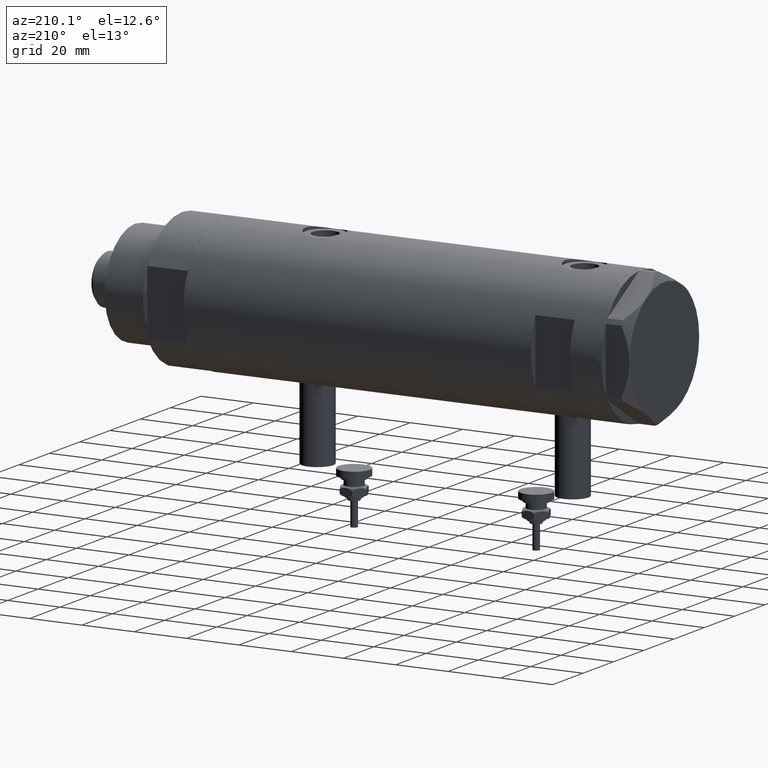
[diagram: clean part render]
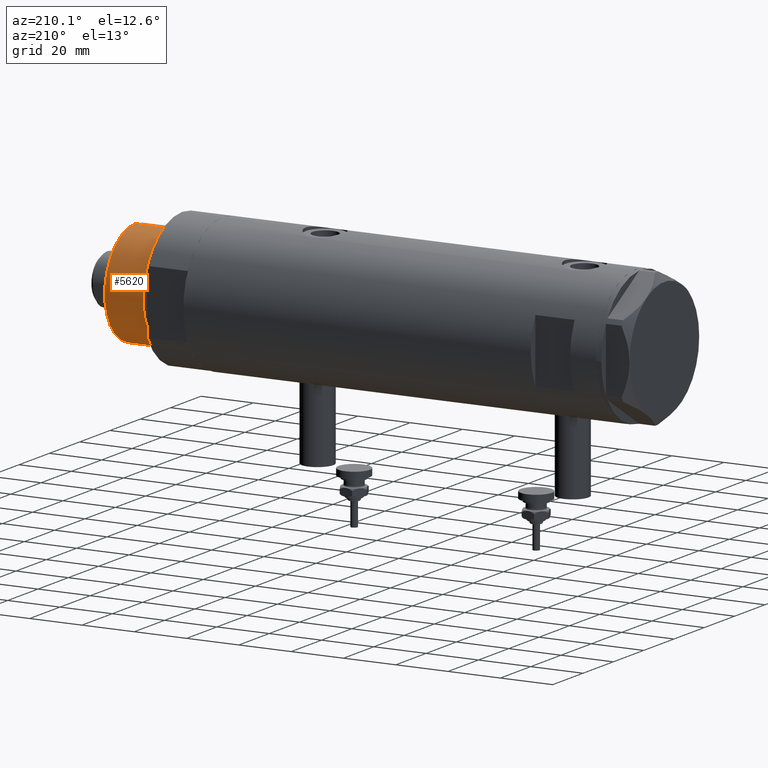
[diagram: same view with one face highlighted and labeled with its STEP entity id]
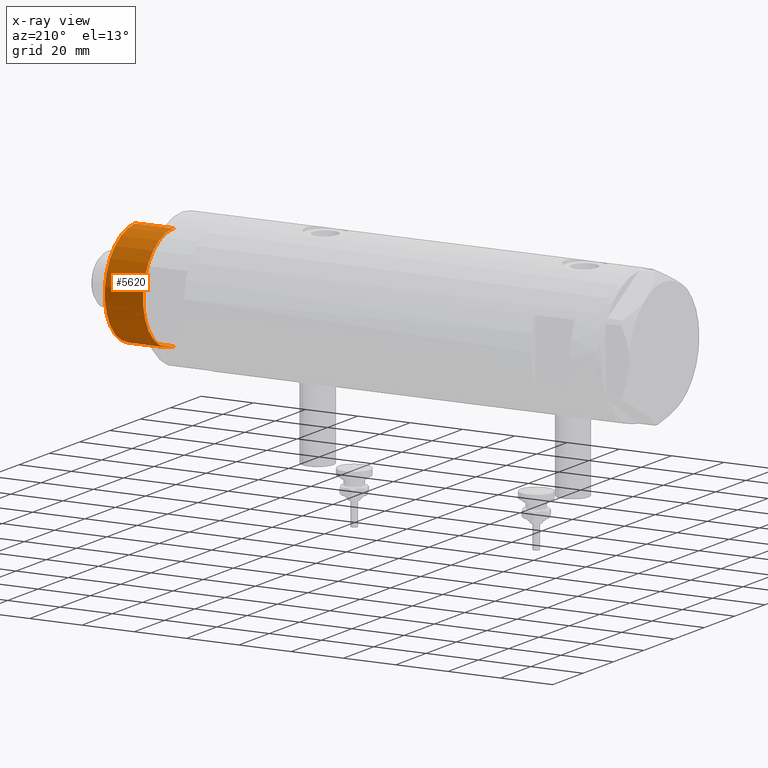
[diagram: x-ray of the same camera — body ghosted, the highlighted face saturated]
A machine part, auxiliary view. The second image highlights one B-rep face of the part: STEP entity #5620.
The next image is the same camera in x-ray: the body ghosted, the highlighted face saturated — about 0% of this face is hidden behind the body in this view.
In plain terms, the highlighted cylindrical surface (partial cylindrical patch) has radius 20 mm, axis along (-1, -0, 0).
Its self-contained STEP definition (entity closure, byte-faithful):
#172 = DIRECTION ( 'NONE',  ( -0.000000000000000000, -0.000000000000000000, 1.000000000000000000 ) ) ;
#311 = VERTEX_POINT ( 'NONE', #326 ) ;
#326 = CARTESIAN_POINT ( 'NONE',  ( -19.99999999999999645, 0.000000000000000000, 18.87384048104053846 ) ) ;
#563 = ORIENTED_EDGE ( 'NONE', *, *, #4243, .T. ) ;
#582 = DIRECTION ( 'NONE',  ( 1.000000000000000000, 0.000000000000000000, 0.000000000000000000 ) ) ;
#760 = EDGE_CURVE ( 'NONE', #2345, #4958, #3474, .T. ) ;
#778 = CARTESIAN_POINT ( 'NONE',  ( 0.000000000000000000, 0.000000000000000000, 33.50000000000000000 ) ) ;
#981 = CARTESIAN_POINT ( 'NONE',  ( 19.99999999999999645, 2.449293598294706119E-15, 33.50000000000000000 ) ) ;
#1203 = CARTESIAN_POINT ( 'NONE',  ( -19.99999999999999645, 0.000000000000000000, 33.50000000000000000 ) ) ;
#1429 = LINE ( 'NONE', #981, #5943 ) ;
#1620 = CYLINDRICAL_SURFACE ( 'NONE', #5847, 19.99999999999999645 ) ;
#1622 = AXIS2_PLACEMENT_3D ( 'NONE', #778, #5166, #4651 ) ;
#1930 = EDGE_LOOP ( 'NONE', ( #5178, #2825, #563, #5009 ) ) ;
#2059 = AXIS2_PLACEMENT_3D ( 'NONE', #3560, #172, #582 ) ;
#2345 = VERTEX_POINT ( 'NONE', #5054 ) ;
#2825 = ORIENTED_EDGE ( 'NONE', *, *, #4324, .T. ) ;
#2901 = EDGE_CURVE ( 'NONE', #4958, #311, #3372, .T. ) ;
#3003 = DIRECTION ( 'NONE',  ( -1.000000000000000000, 0.000000000000000000, 0.000000000000000000 ) ) ;
#3024 = VERTEX_POINT ( 'NONE', #4026 ) ;
#3277 = VECTOR ( 'NONE', #5823, 1000.000000000000000 ) ;
#3372 = LINE ( 'NONE', #6282, #3277 ) ;
#3474 = CIRCLE ( 'NONE', #1622, 19.99999999999999645 ) ;
#3492 = CARTESIAN_POINT ( 'NONE',  ( 0.000000000000000000, 0.000000000000000000, 33.50000000000000000 ) ) ;
#3560 = CARTESIAN_POINT ( 'NONE',  ( 0.000000000000000000, 0.000000000000000000, 18.87384048104053846 ) ) ;
#3814 = DIRECTION ( 'NONE',  ( -0.000000000000000000, -0.000000000000000000, -1.000000000000000000 ) ) ;
#4026 = CARTESIAN_POINT ( 'NONE',  ( 19.99999999999999645, 2.449293598294706119E-15, 18.87384048104053846 ) ) ;
#4243 = EDGE_CURVE ( 'NONE', #3024, #311, #4808, .T. ) ;
#4324 = EDGE_CURVE ( 'NONE', #2345, #3024, #1429, .T. ) ;
#4539 = DIRECTION ( 'NONE',  ( -0.000000000000000000, -0.000000000000000000, -1.000000000000000000 ) ) ;
#4651 = DIRECTION ( 'NONE',  ( 1.000000000000000000, 0.000000000000000000, 0.000000000000000000 ) ) ;
#4808 = CIRCLE ( 'NONE', #2059, 19.99999999999999645 ) ;
#4958 = VERTEX_POINT ( 'NONE', #1203 ) ;
#4961 = FACE_OUTER_BOUND ( 'NONE', #1930, .T. ) ;
#5009 = ORIENTED_EDGE ( 'NONE', *, *, #2901, .F. ) ;
#5054 = CARTESIAN_POINT ( 'NONE',  ( 19.99999999999999645, 2.449293598294706119E-15, 33.50000000000000000 ) ) ;
#5166 = DIRECTION ( 'NONE',  ( 0.000000000000000000, 0.000000000000000000, 1.000000000000000000 ) ) ;
#5178 = ORIENTED_EDGE ( 'NONE', *, *, #760, .F. ) ;
#5620 = ADVANCED_FACE ( 'NONE', ( #4961 ), #1620, .T. ) ;
#5823 = DIRECTION ( 'NONE',  ( -0.000000000000000000, -0.000000000000000000, -1.000000000000000000 ) ) ;
#5847 = AXIS2_PLACEMENT_3D ( 'NONE', #3492, #4539, #3003 ) ;
#5943 = VECTOR ( 'NONE', #3814, 1000.000000000000000 ) ;
#6282 = CARTESIAN_POINT ( 'NONE',  ( -19.99999999999999645, 0.000000000000000000, 33.50000000000000000 ) ) ;